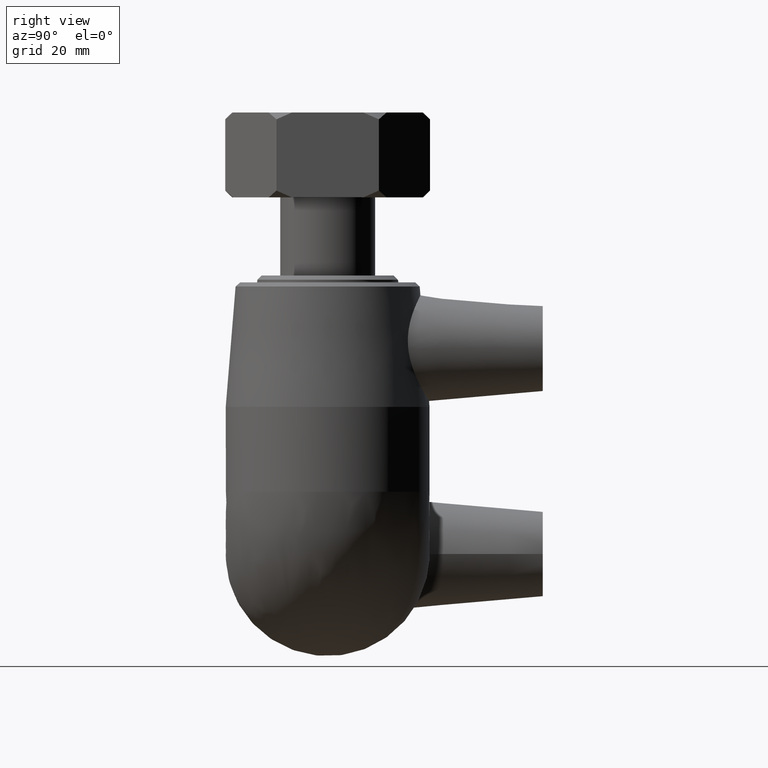
[diagram: clean part render]
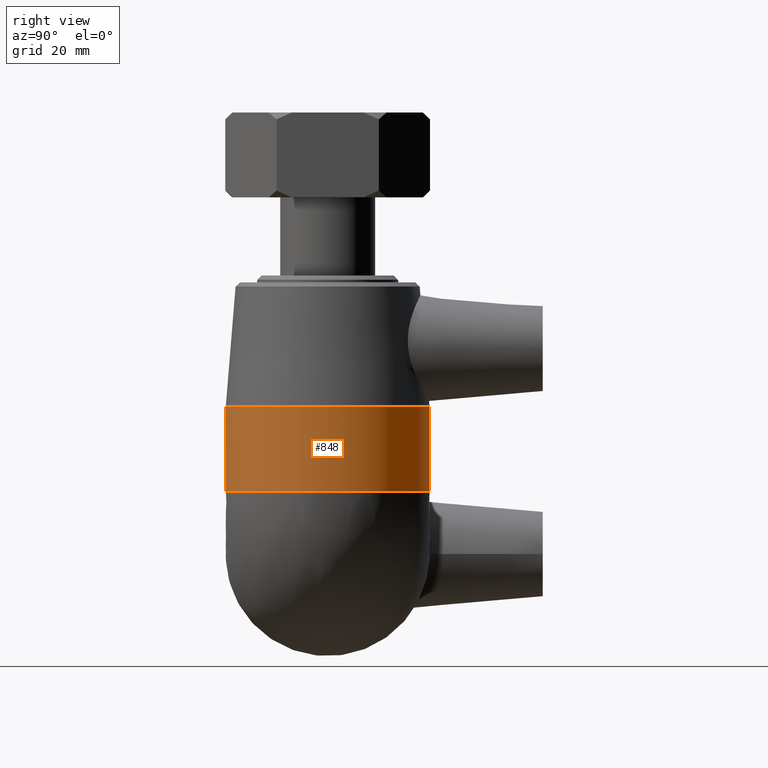
[diagram: same view with one face highlighted and labeled with its STEP entity id]
A machine part, right view. The second image highlights one B-rep face of the part: STEP entity #848.
In plain terms, the highlighted cylindrical surface (bore or boss wall) has radius 18 mm, axis along (0, -0, -1).
Its self-contained STEP definition (entity closure, byte-faithful):
#18=ELLIPSE('',#964,25.4558441227157,18.);
#95=CYLINDRICAL_SURFACE('',#963,18.);
#155=FACE_BOUND('',#313,.T.);
#217=FACE_OUTER_BOUND('',#312,.T.);
#312=EDGE_LOOP('',(#750));
#313=EDGE_LOOP('',(#751,#752));
#364=CIRCLE('',#927,18.);
#376=CIRCLE('',#952,18.);
#443=VERTEX_POINT('',#1488);
#456=VERTEX_POINT('',#1586);
#457=VERTEX_POINT('',#1587);
#541=EDGE_CURVE('',#443,#443,#364,.T.);
#557=EDGE_CURVE('',#456,#457,#376,.T.);
#563=EDGE_CURVE('',#457,#456,#18,.T.);
#750=ORIENTED_EDGE('',*,*,#541,.T.);
#751=ORIENTED_EDGE('',*,*,#563,.F.);
#752=ORIENTED_EDGE('',*,*,#557,.F.);
#848=ADVANCED_FACE('',(#217,#155),#95,.T.);
#927=AXIS2_PLACEMENT_3D('',#1489,#1129,#1130);
#952=AXIS2_PLACEMENT_3D('',#1588,#1180,#1181);
#963=AXIS2_PLACEMENT_3D('',#1603,#1202,#1203);
#964=AXIS2_PLACEMENT_3D('',#1604,#1204,#1205);
#1129=DIRECTION('center_axis',(6.12323399573677E-17,-2.89120579329468E-18,
-1.));
#1130=DIRECTION('ref_axis',(-1.,0.,-6.12323399573676E-17));
#1180=DIRECTION('center_axis',(6.12323399573677E-17,-2.89120579329468E-18,
-1.));
#1181=DIRECTION('ref_axis',(-1.,0.,-6.12323399573676E-17));
#1202=DIRECTION('center_axis',(6.12323399573677E-17,-2.89120579329468E-18,
-1.));
#1203=DIRECTION('ref_axis',(0.,1.,0.));
#1204=DIRECTION('center_axis',(-0.707106781186547,2.0443912222445E-18,-0.707106781186548));
#1205=DIRECTION('ref_axis',(0.707106781186548,-2.0443912222445E-18,-0.707106781186547));
#1488=CARTESIAN_POINT('',(-1.59204083889156E-15,18.,26.));
#1489=CARTESIAN_POINT('Origin',(-1.59204083889156E-15,-6.36065274524829E-17,
26.));
#1586=CARTESIAN_POINT('',(-11.,14.247806848775,11.));
#1587=CARTESIAN_POINT('',(-11.,-14.247806848775,11.));
#1588=CARTESIAN_POINT('Origin',(-6.73555739531045E-16,-1.06974614351903E-16,
11.));
#1603=CARTESIAN_POINT('Origin',(-1.1327982892113E-15,-8.5290570902193E-17,
18.5));
#1604=CARTESIAN_POINT('Origin',(0.,-1.38777878078145E-16,0.));